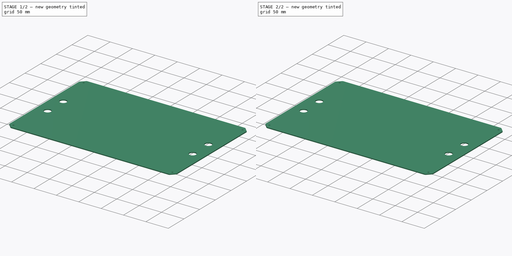
[diagram: build sequence overview — one tinted view per stage of 2, left to right]
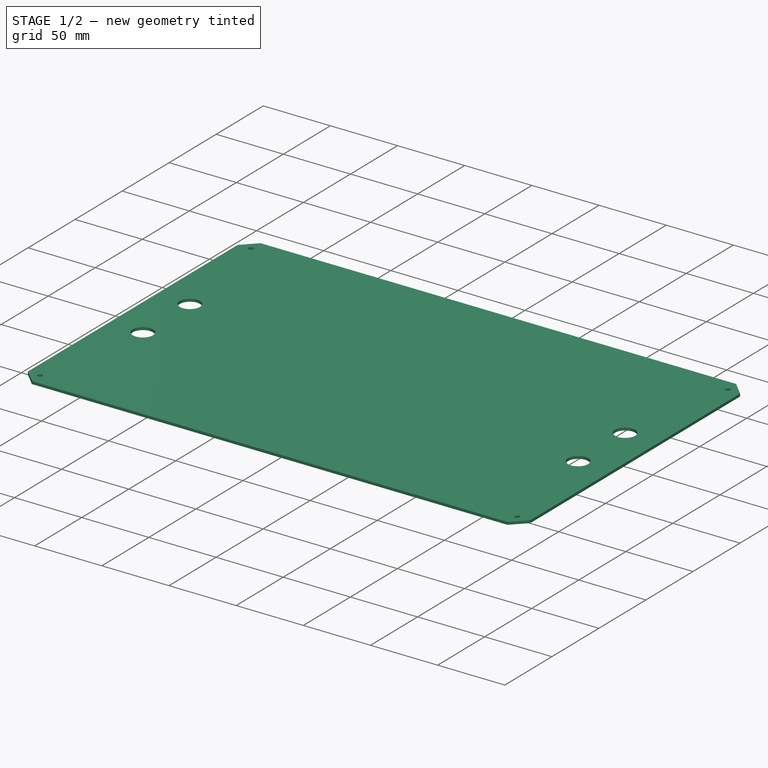
[diagram: stage 1 of 2 — iso view after this stage's code; geometry added in this stage tinted green]
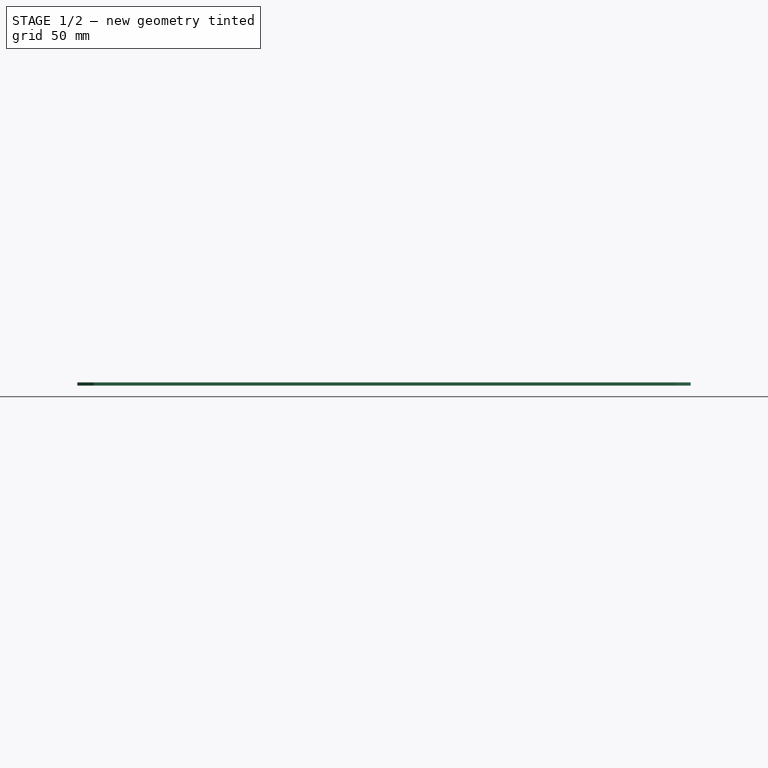
[diagram: stage 1 of 2 — front view after this stage's code; geometry added in this stage tinted green]
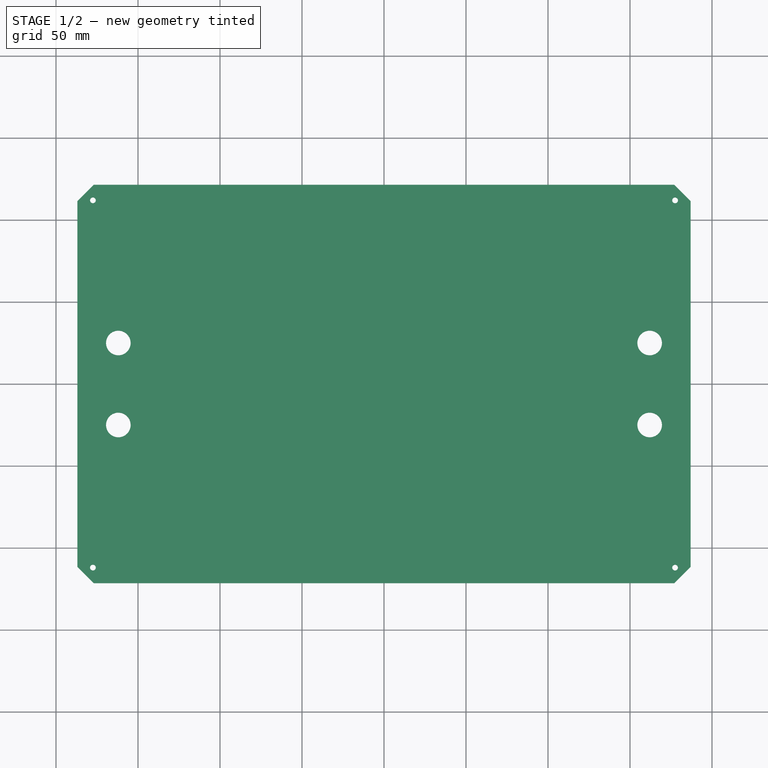
[diagram: stage 1 of 2 — top view after this stage's code; geometry added in this stage tinted green]
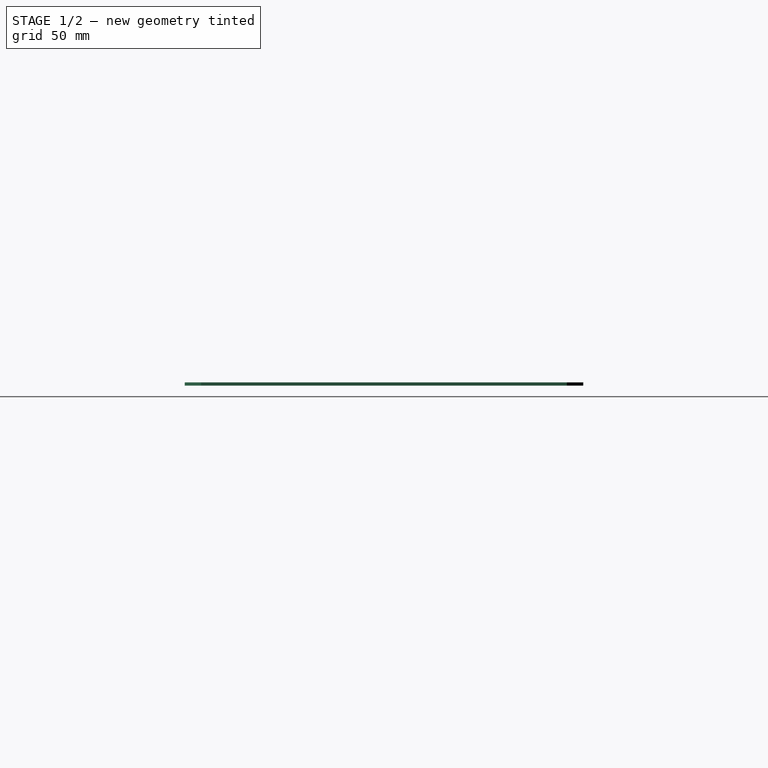
[diagram: stage 1 of 2 — right view after this stage's code; geometry added in this stage tinted green]
FCSTD DOCUMENT  (FreeCAD 0.14R3310 (Git))
Label: POLICARBONATO SUPERIOR
License: CC-BY 3.0
LicenseURL: http://creativecommons.org/licenses/by/3.0/
objects: Sketcher::SketchObject×1, PartDesign::Pad×1, PartDesign::Chamfer×1, PartDesign::Fillet×1
note: 5 computed .brp shape members not serialized (recipe doc carries the construction recipe); baked Part::Feature solids carry a one-line shape summary decoded from their .brp

FEATURE [Sketcher::SketchObject] Sketch
  sketch-geometry (12):
    g0: LineSegment StartX=-187 StartY=121.5 StartZ=0 EndX=187 EndY=121.5 EndZ=0
    g1: LineSegment StartX=187 StartY=121.5 StartZ=0 EndX=187 EndY=-121.5 EndZ=0
    g2: LineSegment StartX=187 StartY=-121.5 StartZ=0 EndX=-187 EndY=-121.5 EndZ=0
    g3: LineSegment StartX=-187 StartY=-121.5 StartZ=0 EndX=-187 EndY=121.5 EndZ=0
    g4: Circle CenterX=-177.5 CenterY=112 CenterZ=0 NormalX=0 NormalY=0 NormalZ=1 Radius=1.75
    g5: Circle CenterX=-162 CenterY=25 CenterZ=0 NormalX=0 NormalY=0 NormalZ=1 Radius=7.5
    g6: Circle CenterX=-162 CenterY=-25 CenterZ=0 NormalX=0 NormalY=0 NormalZ=1 Radius=7.5
    g7: Circle CenterX=162 CenterY=25 CenterZ=0 NormalX=0 NormalY=0 NormalZ=1 Radius=7.5
    g8: Circle CenterX=162 CenterY=-25 CenterZ=0 NormalX=0 NormalY=0 NormalZ=1 Radius=7.5
    g9: Circle CenterX=-177.5 CenterY=-112 CenterZ=0 NormalX=0 NormalY=0 NormalZ=1 Radius=1.75
    g10: Circle CenterX=177.5 CenterY=-112 CenterZ=0 NormalX=0 NormalY=0 NormalZ=1 Radius=1.75
    g11: Circle CenterX=177.5 CenterY=112 CenterZ=0 NormalX=0 NormalY=0 NormalZ=1 Radius=1.75
  constraints (29):
    c: Coincident(g0,g1)
    c: Coincident(g1,g2)
    c: Coincident(g2,g3)
    c: Coincident(g3,g0)
    c: Horizontal(g0)
    c: Horizontal(g2)
    c: Vertical(g1)
    c: Vertical(g3)
    c: Symmetric(g1,g0,g-1)
    c: DistanceX(g0) = 374
    c: Distance(g1) = 243
    c: Distance(g4,g0) = 9.5
    c: Distance(g4,g3) = 9.5
    c: Radius(g4) = 1.75
    c: Radius(g5) = 7.5
    c: Distance(g5,g0) = 96.5
    c: Distance(g5,g3) = 25
    c: Equal(g7,g5)
    c: Equal(g5,g8)
    c: Equal(g8,g6)
    c: Symmetric(g6,g5,g-1)
    c: Symmetric(g7,g5,g-2)
    c: Symmetric(g7,g8,g-1)
    c: Equal(g11,g10)
    c: Equal(g10,g9)
    c: Equal(g9,g4)
    c: Symmetric(g4,g11,g-2)
    c: Symmetric(g11,g10,g-1)
    c: Symmetric(g9,g10,g-2)
FEATURE [PartDesign::Pad] Pad
  Length = 2
  Length2 = 100
  Sketch = -> Sketch
  Type = 0
FEATURE [PartDesign::Chamfer] Chamfer
  Base = -> Pad [Edge5,Edge2,Edge1,Edge8]
  Size = 10
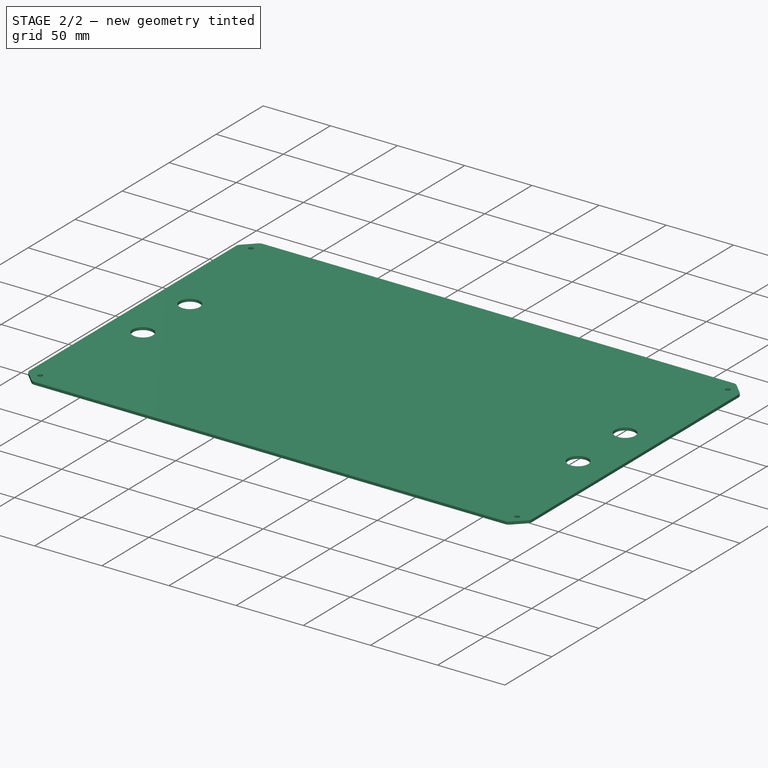
[diagram: stage 2 of 2 — iso view after this stage's code; geometry added in this stage tinted green]
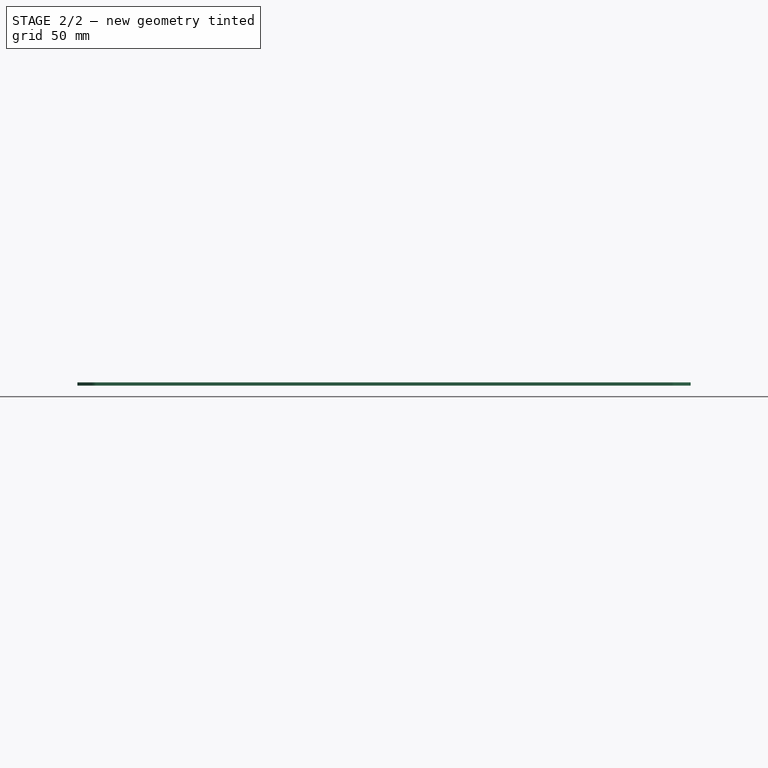
[diagram: stage 2 of 2 — front view after this stage's code; geometry added in this stage tinted green]
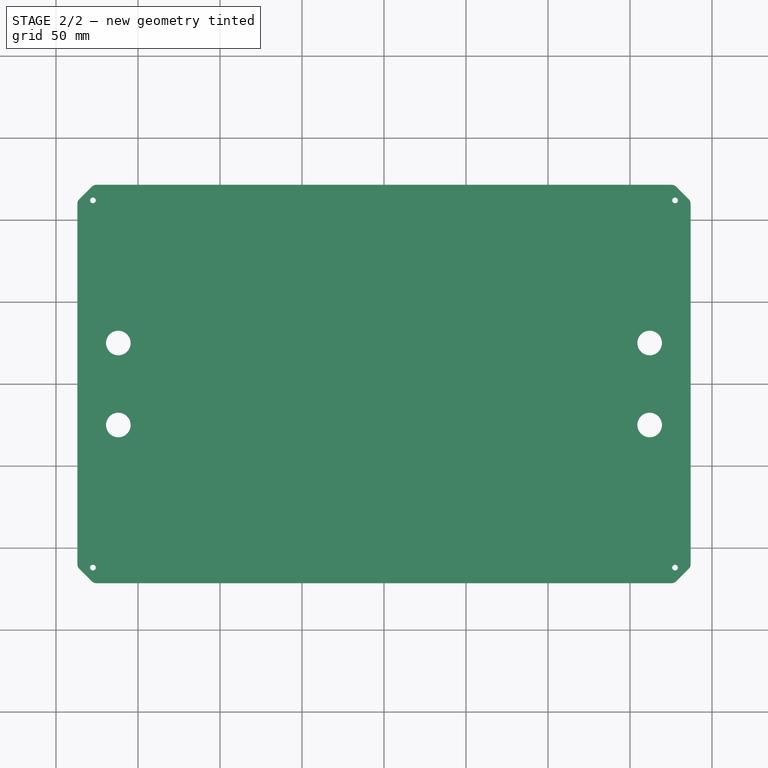
[diagram: stage 2 of 2 — top view after this stage's code; geometry added in this stage tinted green]
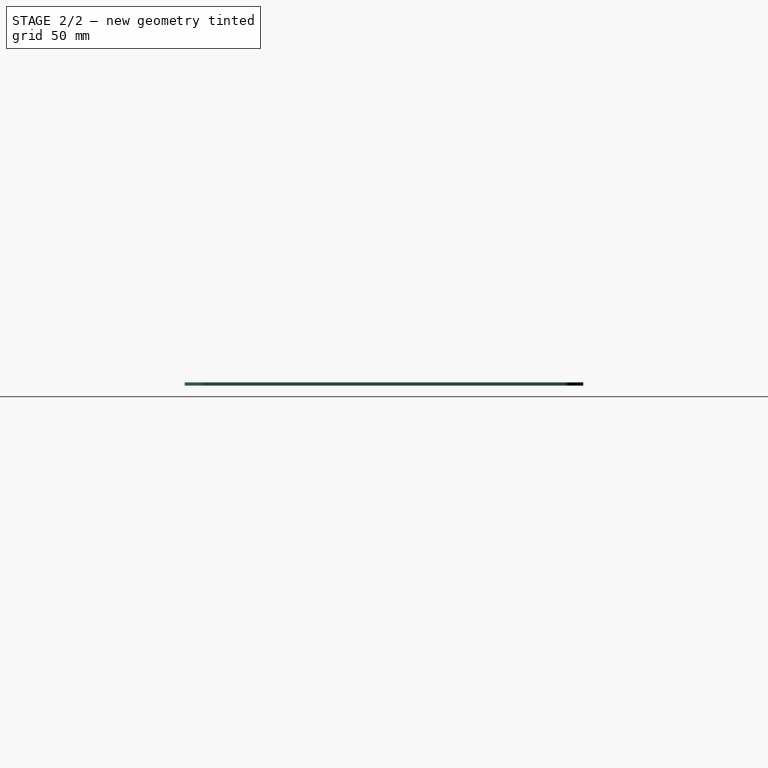
[diagram: stage 2 of 2 — right view after this stage's code; geometry added in this stage tinted green]
FEATURE [PartDesign::Fillet] Fillet
  Base = -> Chamfer [Edge3,Edge22,Edge2,Edge20,Edge39,Edge37,Edge40,Edge38]
  Radius = 4
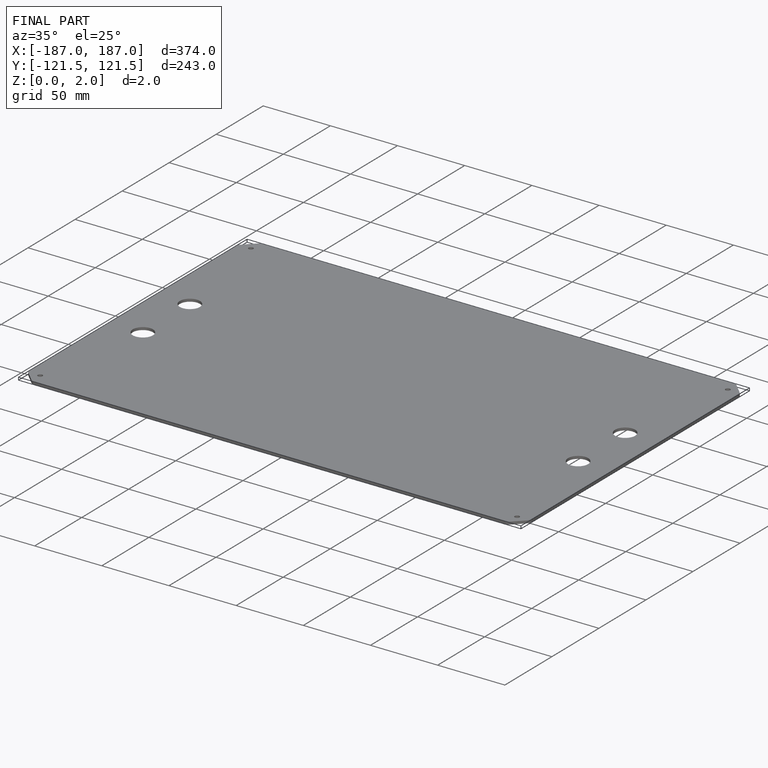
[diagram: finished part — iso view with bounding-box wireframe]
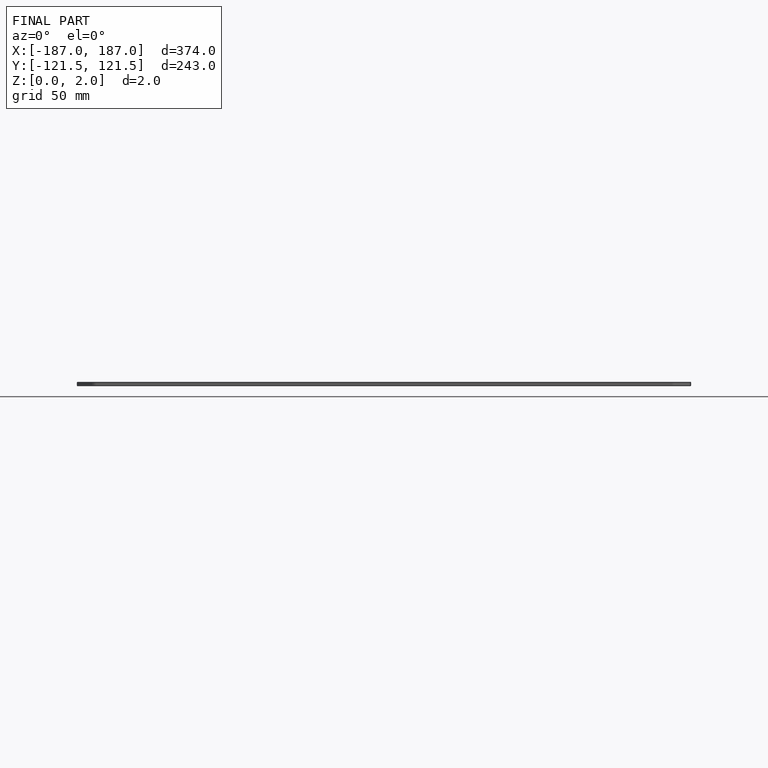
[diagram: finished part — front view with bounding-box wireframe]
